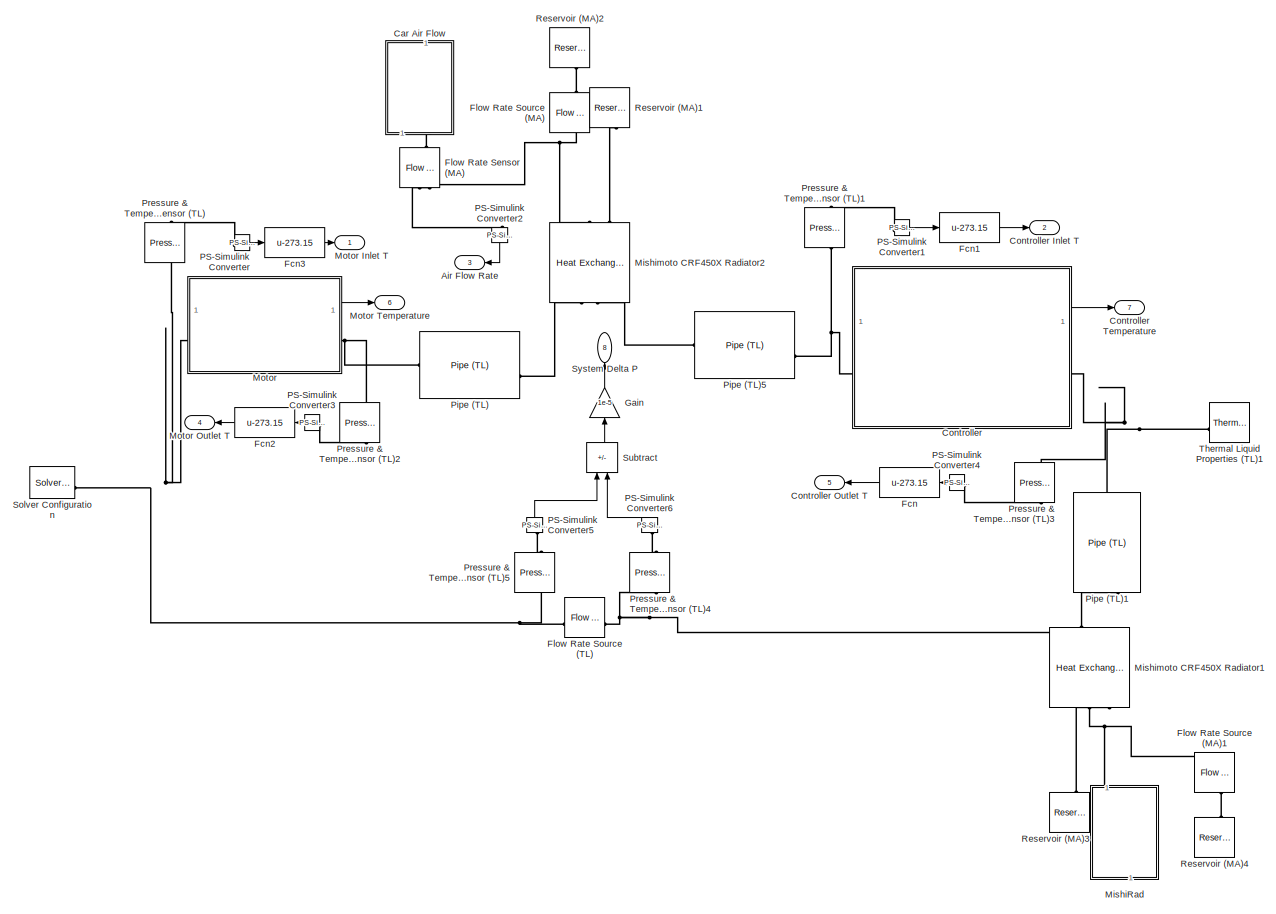
[diagram: root canvas - part 1/1, most of the canvas]
MODEL slx_9f6bfcc296d9
KIND model
CONFIG AbsTol = auto
CONFIG EnableMultiTasking = off
CONFIG FixedStep = auto
CONFIG MaxStep = auto
CONFIG MinStep = auto
CONFIG RelTol = 1e-3
CONFIG SampleTimeConstraint = Unconstrained
CONFIG SolverName = VariableStepAuto
CONFIG StartTime = 0.0
CONFIG StopTime = 2000
BLOCK [Outport] Air Flow Rate
  Port = 3
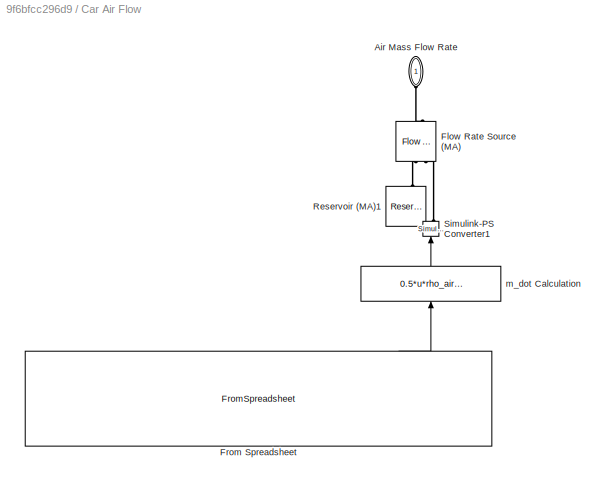
BLOCK [SubSystem] Car Air Flow
  NameLocation = top
BLOCK [PMIOPort] Car Air Flow/Air Mass Flow Rate
  NameLocation = left
  Side = Left
BLOCK [Reference] Car Air Flow/Flow Rate Source (MA)  REF=fl_lib/Moist Air/Sources/Flow Rate Source
(MA)
  NameLocation = right
  SourceBlock = fl_lib/Moist Air/Sources/Flow Rate Source\n(MA)
  SourceType = Flow Rate Source\n(MA)
BLOCK [FromSpreadsheet] Car Air Flow/From Spreadsheet
  FileName = <userpath>\School\UCalgary Racing\2024-25\Projects\UCR02-CoolingSim\data\shortened_velocity.csv
  NameLocation = right
  SheetName = shortened_velocity
BLOCK [Reference] Car Air Flow/Reservoir (MA)1  REF=fl_lib/Moist Air/Elements/Reservoir (MA)
  NameLocation = right
  SourceBlock = fl_lib/Moist Air/Elements/Reservoir (MA)
  SourceType = Reservoir (MA)
BLOCK [Reference] Car Air Flow/Simulink-PS Converter1  REF=nesl_utility/Simulink-PS
Converter
  NameLocation = right
  SourceBlock = nesl_utility/Simulink-PS\nConverter
  SourceType = Simulink-PS\nConverter
BLOCK [Fcn] Car Air Flow/m_dot Calculation
  Expr = 0.5*u*rho_air*current_rad_area
  NameLocation = right
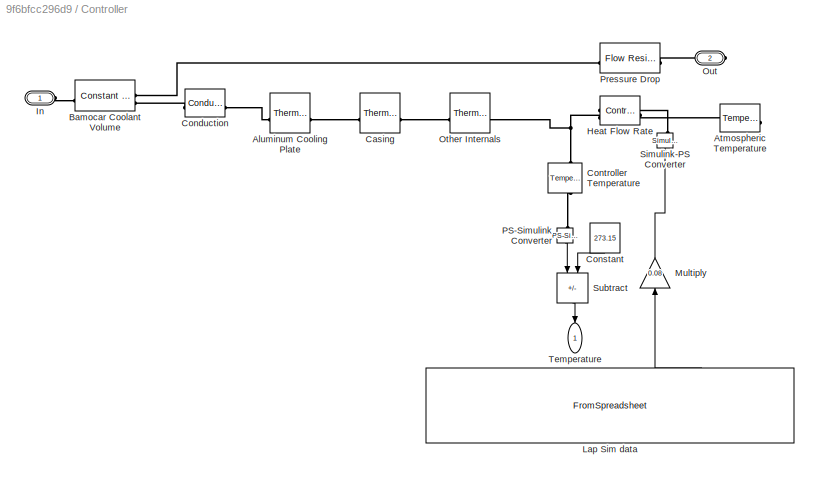
BLOCK [SubSystem] Controller
BLOCK [Outport] Controller Inlet T
  Port = 2
BLOCK [Outport] Controller Outlet T
  NameLocation = top
  Port = 5
BLOCK [Outport] Controller Temperature
  Port = 7
BLOCK [Reference] Controller/Aluminum Cooling Plate  REF=fl_lib/Thermal/Thermal Elements/Thermal Mass
  SourceBlock = fl_lib/Thermal/Thermal Elements/Thermal Mass
  SourceType = Thermal Mass
BLOCK [Reference] Controller/Atmospheric Temperature  REF=fl_lib/Thermal/Thermal Sources/Temperature Source
  NameLocation = top
  SourceBlock = fl_lib/Thermal/Thermal Sources/Temperature Source
  SourceType = Temperature Source
BLOCK [Reference] Controller/Bamocar Coolant Volume  REF=fl_lib/Thermal Liquid/Elements/Constant Volume
Chamber (TL)
  SourceBlock = fl_lib/Thermal Liquid/Elements/Constant Volume\nChamber (TL)
  SourceType = Constant Volume\nChamber (TL)
BLOCK [Reference] Controller/Casing  REF=fl_lib/Thermal/Thermal Elements/Thermal Mass
  SourceBlock = fl_lib/Thermal/Thermal Elements/Thermal Mass
  SourceType = Thermal Mass
BLOCK [Reference] Controller/Conduction  REF=fl_lib/Thermal/Thermal Elements/Conductive Heat
Transfer
  SourceBlock = fl_lib/Thermal/Thermal Elements/Conductive Heat\nTransfer
  SourceType = Conductive Heat\nTransfer
BLOCK [Constant] Controller/Constant
  NameLocation = left
  Value = 273.15
BLOCK [Reference] Controller/Controller Temperature  REF=fl_lib/Thermal/Thermal Sensors/Temperature Sensor
  NameLocation = left
  SourceBlock = fl_lib/Thermal/Thermal Sensors/Temperature Sensor
  SourceType = Temperature Sensor
BLOCK [Reference] Controller/Heat Flow Rate  REF=fl_lib/Thermal/Thermal Sources/Controlled Heat Flow
Rate Source
  NameLocation = top
  SourceBlock = fl_lib/Thermal/Thermal Sources/Controlled Heat Flow\nRate Source
  SourceType = Controlled Heat Flow\nRate Source
BLOCK [PMIOPort] Controller/In
  Side = Left
BLOCK [FromSpreadsheet] Controller/Lap Sim data
  ExtrapolationAfterLastDataPoint = Hold last value
  FileName = <userpath>\School\UCalgary Racing\2024-25\Projects\UCR02-CoolingSim\data\LapTime_Power_new__10.xlsx
  NameLocation = right
  SampleTime = 0.1
  SheetName = LapTime_Power_new__10
BLOCK [Gain] Controller/Multiply
  Gain = 0.08
  NameLocation = right
BLOCK [Reference] Controller/Other Internals  REF=fl_lib/Thermal/Thermal Elements/Thermal Mass
  SourceBlock = fl_lib/Thermal/Thermal Elements/Thermal Mass
  SourceType = Thermal Mass
BLOCK [PMIOPort] Controller/Out
  Port = 2
  Side = Right
BLOCK [Reference] Controller/PS-Simulink Converter  REF=nesl_utility/PS-Simulink
Converter
  NameLocation = left
  SourceBlock = nesl_utility/PS-Simulink\nConverter
  SourceType = PS-Simulink\nConverter
BLOCK [Reference] Controller/Pressure Drop  REF=fl_lib/Thermal Liquid/Elements/Flow Resistance (TL)
  NameLocation = top
  SourceBlock = fl_lib/Thermal Liquid/Elements/Flow Resistance (TL)
  SourceType = Flow Resistance (TL)
BLOCK [Reference] Controller/Simulink-PS Converter  REF=nesl_utility/Simulink-PS
Converter
  NameLocation = right
  SourceBlock = nesl_utility/Simulink-PS\nConverter
  SourceType = Simulink-PS\nConverter
BLOCK [Sum] Controller/Subtract
  IconShape = rectangular
  Inputs = +-
  NameLocation = left
BLOCK [Outport] Controller/Temperature
  NameLocation = left
BLOCK [Fcn] Fcn
  Expr = u-273.15
BLOCK [Fcn] Fcn1
  Expr = u-273.15
BLOCK [Fcn] Fcn2
  Expr = u-273.15
BLOCK [Fcn] Fcn3
  Expr = u-273.15
BLOCK [Reference] Flow Rate Sensor (MA)  REF=fl_lib/Moist Air/Sensors/Flow Rate Sensor
(MA)
  NameLocation = left
  SourceBlock = fl_lib/Moist Air/Sensors/Flow Rate Sensor\n(MA)
  SourceType = Flow Rate Sensor\n(MA)
BLOCK [Reference] Flow Rate Source (MA)  REF=fl_lib/Moist Air/Sources/Flow Rate Source
(MA)
  NameLocation = left
  SourceBlock = fl_lib/Moist Air/Sources/Flow Rate Source\n(MA)
  SourceType = Flow Rate Source\n(MA)
BLOCK [Reference] Flow Rate Source (MA)1  REF=fl_lib/Moist Air/Sources/Flow Rate Source
(MA)
  NameLocation = right
  SourceBlock = fl_lib/Moist Air/Sources/Flow Rate Source\n(MA)
  SourceType = Flow Rate Source\n(MA)
BLOCK [Reference] Flow Rate Source (TL)  REF=fl_lib/Thermal Liquid/Sources/Flow Rate Source
(TL)
  SourceBlock = fl_lib/Thermal Liquid/Sources/Flow Rate Source\n(TL)
  SourceType = Flow Rate Source\n(TL)
BLOCK [Gain] Gain
  Gain = 1e-5
  NameLocation = right
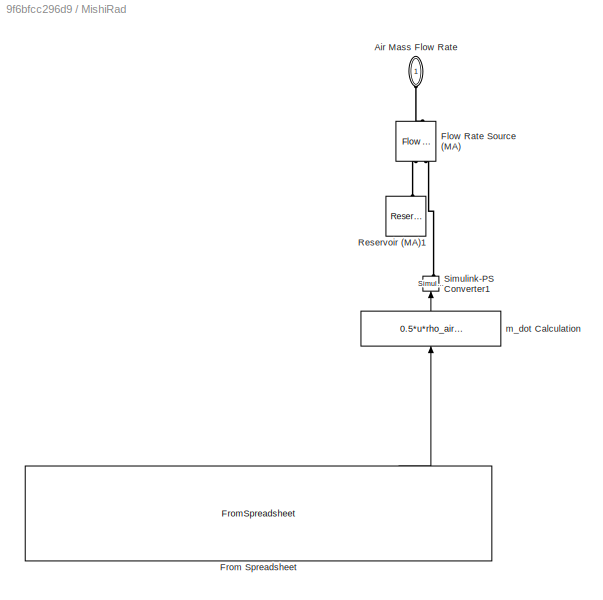
BLOCK [SubSystem] MishiRad
BLOCK [PMIOPort] MishiRad/Air Mass Flow Rate
  NameLocation = left
  Side = Left
BLOCK [Reference] MishiRad/Flow Rate Source (MA)  REF=fl_lib/Moist Air/Sources/Flow Rate Source
(MA)
  NameLocation = right
  SourceBlock = fl_lib/Moist Air/Sources/Flow Rate Source\n(MA)
  SourceType = Flow Rate Source\n(MA)
BLOCK [FromSpreadsheet] MishiRad/From Spreadsheet
  FileName = <userpath>\School\UCalgary Racing\2024-25\Projects\UCR02-CoolingSim\data\shortened_velocity.csv
  NameLocation = right
  SheetName = shortened_velocity
BLOCK [Reference] MishiRad/Reservoir (MA)1  REF=fl_lib/Moist Air/Elements/Reservoir (MA)
  NameLocation = right
  SourceBlock = fl_lib/Moist Air/Elements/Reservoir (MA)
  SourceType = Reservoir (MA)
BLOCK [Reference] MishiRad/Simulink-PS Converter1  REF=nesl_utility/Simulink-PS
Converter
  NameLocation = right
  SourceBlock = nesl_utility/Simulink-PS\nConverter
  SourceType = Simulink-PS\nConverter
BLOCK [Fcn] MishiRad/m_dot Calculation
  Expr = 0.5*u*rho_air*current_rad_area
  NameLocation = right
BLOCK [Reference] Mishimoto CRF450X Radiator1  REF=SimscapeFluids_lib/Heat Exchangers/Thermal Liquid -
Moist Air/Heat Exchanger
(TL-MA)
  NameLocation = left
  SourceBlock = SimscapeFluids_lib/Heat Exchangers/Thermal Liquid -\nMoist Air/Heat Exchanger\n(TL-MA)
  SourceType = Heat Exchanger\n(TL-MA)
BLOCK [Reference] Mishimoto CRF450X Radiator2  REF=SimscapeFluids_lib/Heat Exchangers/Thermal Liquid -
Moist Air/Heat Exchanger
(TL-MA)
  NameLocation = right
  SourceBlock = SimscapeFluids_lib/Heat Exchangers/Thermal Liquid -\nMoist Air/Heat Exchanger\n(TL-MA)
  SourceType = Heat Exchanger\n(TL-MA)
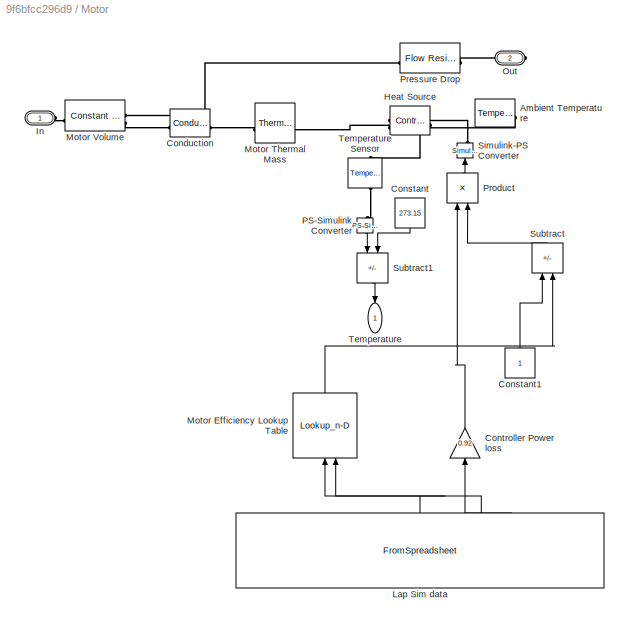
BLOCK [SubSystem] Motor
BLOCK [Outport] Motor Inlet T
BLOCK [Outport] Motor Outlet T
  NameLocation = top
  Port = 4
BLOCK [Outport] Motor Temperature
  Port = 6
BLOCK [Reference] Motor/Ambient Temperature  REF=fl_lib/Thermal/Thermal Sources/Temperature Source
  NameLocation = top
  SourceBlock = fl_lib/Thermal/Thermal Sources/Temperature Source
  SourceType = Temperature Source
BLOCK [Reference] Motor/Conduction  REF=fl_lib/Thermal/Thermal Elements/Conductive Heat
Transfer
  SourceBlock = fl_lib/Thermal/Thermal Elements/Conductive Heat\nTransfer
  SourceType = Conductive Heat\nTransfer
BLOCK [Constant] Motor/Constant
  NameLocation = left
  Value = 273.15
BLOCK [Constant] Motor/Constant1
  NameLocation = right
BLOCK [Gain] Motor/Controller Power loss
  Gain = 0.92
  NameLocation = right
BLOCK [Reference] Motor/Heat Source  REF=fl_lib/Thermal/Thermal Sources/Controlled Heat Flow
Rate Source
  NameLocation = top
  SourceBlock = fl_lib/Thermal/Thermal Sources/Controlled Heat Flow\nRate Source
  SourceType = Controlled Heat Flow\nRate Source
BLOCK [PMIOPort] Motor/In
  Side = Left
BLOCK [FromSpreadsheet] Motor/Lap Sim data
  ExtrapolationAfterLastDataPoint = Ground value
  FileName = <userpath>\School\UCalgary Racing\2024-25\Projects\UCR02-CoolingSim\data\LapTime_Power_new__10.xlsx
  NameLocation = right
  SampleTime = 0.1
  SheetName = LapTime_Power_new__10
BLOCK [Lookup_n-D] Motor/Motor Efficiency Lookup Table
  BreakpointsForDimension1 = speed
  BreakpointsForDimension2 = torque
  InputPortMap = u0,u1
  InternalRulePriority = Speed
  NameLocation = right
  RndMeth = Simplest
  Table = efficiencyGrid
BLOCK [Reference] Motor/Motor Thermal Mass  REF=fl_lib/Thermal/Thermal Elements/Thermal Mass
  SourceBlock = fl_lib/Thermal/Thermal Elements/Thermal Mass
  SourceType = Thermal Mass
BLOCK [Reference] Motor/Motor Volume  REF=fl_lib/Thermal Liquid/Elements/Constant Volume
Chamber (TL)
  SourceBlock = fl_lib/Thermal Liquid/Elements/Constant Volume\nChamber (TL)
  SourceType = Constant Volume\nChamber (TL)
BLOCK [PMIOPort] Motor/Out
  Port = 2
  Side = Right
BLOCK [Reference] Motor/PS-Simulink Converter  REF=nesl_utility/PS-Simulink
Converter
  NameLocation = left
  SourceBlock = nesl_utility/PS-Simulink\nConverter
  SourceType = PS-Simulink\nConverter
BLOCK [Reference] Motor/Pressure Drop  REF=fl_lib/Thermal Liquid/Elements/Flow Resistance (TL)
  NameLocation = top
  SourceBlock = fl_lib/Thermal Liquid/Elements/Flow Resistance (TL)
  SourceType = Flow Resistance (TL)
BLOCK [Product] Motor/Product
  NameLocation = right
BLOCK [Reference] Motor/Simulink-PS Converter  REF=nesl_utility/Simulink-PS
Converter
  NameLocation = right
  SourceBlock = nesl_utility/Simulink-PS\nConverter
  SourceType = Simulink-PS\nConverter
BLOCK [Sum] Motor/Subtract
  IconShape = rectangular
  Inputs = +-
  NameLocation = right
BLOCK [Sum] Motor/Subtract1
  IconShape = rectangular
  Inputs = +-
  NameLocation = left
BLOCK [Outport] Motor/Temperature
  NameLocation = left
BLOCK [Reference] Motor/Temperature Sensor  REF=fl_lib/Thermal/Thermal Sensors/Temperature Sensor
  NameLocation = left
  SourceBlock = fl_lib/Thermal/Thermal Sensors/Temperature Sensor
  SourceType = Temperature Sensor
BLOCK [Reference] PS-Simulink Converter  REF=nesl_utility/PS-Simulink
Converter
  SourceBlock = nesl_utility/PS-Simulink\nConverter
  SourceType = PS-Simulink\nConverter
BLOCK [Reference] PS-Simulink Converter1  REF=nesl_utility/PS-Simulink
Converter
  SourceBlock = nesl_utility/PS-Simulink\nConverter
  SourceType = PS-Simulink\nConverter
BLOCK [Reference] PS-Simulink Converter2  REF=nesl_utility/PS-Simulink
Converter
  NameLocation = left
  SourceBlock = nesl_utility/PS-Simulink\nConverter
  SourceType = PS-Simulink\nConverter
BLOCK [Reference] PS-Simulink Converter3  REF=nesl_utility/PS-Simulink
Converter
  NameLocation = top
  SourceBlock = nesl_utility/PS-Simulink\nConverter
  SourceType = PS-Simulink\nConverter
BLOCK [Reference] PS-Simulink Converter4  REF=nesl_utility/PS-Simulink
Converter
  NameLocation = top
  SourceBlock = nesl_utility/PS-Simulink\nConverter
  SourceType = PS-Simulink\nConverter
BLOCK [Reference] PS-Simulink Converter5  REF=nesl_utility/PS-Simulink
Converter
  NameLocation = right
  SourceBlock = nesl_utility/PS-Simulink\nConverter
  SourceType = PS-Simulink\nConverter
BLOCK [Reference] PS-Simulink Converter6  REF=nesl_utility/PS-Simulink
Converter
  NameLocation = right
  SourceBlock = nesl_utility/PS-Simulink\nConverter
  SourceType = PS-Simulink\nConverter
BLOCK [Reference] Pipe (TL)  REF=fl_lib/Thermal Liquid/Elements/Pipe (TL)
  SourceBlock = fl_lib/Thermal Liquid/Elements/Pipe (TL)
  SourceType = Pipe (TL)
BLOCK [Reference] Pipe (TL)1  REF=fl_lib/Thermal Liquid/Elements/Pipe (TL)
  NameLocation = left
  SourceBlock = fl_lib/Thermal Liquid/Elements/Pipe (TL)
  SourceType = Pipe (TL)
BLOCK [Reference] Pipe (TL)5  REF=fl_lib/Thermal Liquid/Elements/Pipe (TL)
  SourceBlock = fl_lib/Thermal Liquid/Elements/Pipe (TL)
  SourceType = Pipe (TL)
BLOCK [Reference] Pressure & Temperature Sensor (TL)  REF=fl_lib/Thermal Liquid/Sensors/Pressure &
Temperature Sensor
(TL)
  NameLocation = left
  SourceBlock = fl_lib/Thermal Liquid/Sensors/Pressure &\nTemperature Sensor\n(TL)
  SourceType = Pressure &\nTemperature Sensor\n(TL)
BLOCK [Reference] Pressure & Temperature Sensor (TL)1  REF=fl_lib/Thermal Liquid/Sensors/Pressure &
Temperature Sensor
(TL)
  NameLocation = left
  SourceBlock = fl_lib/Thermal Liquid/Sensors/Pressure &\nTemperature Sensor\n(TL)
  SourceType = Pressure &\nTemperature Sensor\n(TL)
BLOCK [Reference] Pressure & Temperature Sensor (TL)2  REF=fl_lib/Thermal Liquid/Sensors/Pressure &
Temperature Sensor
(TL)
  NameLocation = right
  SourceBlock = fl_lib/Thermal Liquid/Sensors/Pressure &\nTemperature Sensor\n(TL)
  SourceType = Pressure &\nTemperature Sensor\n(TL)
BLOCK [Reference] Pressure & Temperature Sensor (TL)3  REF=fl_lib/Thermal Liquid/Sensors/Pressure &
Temperature Sensor
(TL)
  NameLocation = right
  SourceBlock = fl_lib/Thermal Liquid/Sensors/Pressure &\nTemperature Sensor\n(TL)
  SourceType = Pressure &\nTemperature Sensor\n(TL)
BLOCK [Reference] Pressure & Temperature Sensor (TL)4  REF=fl_lib/Thermal Liquid/Sensors/Pressure &
Temperature Sensor
(TL)
  NameLocation = right
  SourceBlock = fl_lib/Thermal Liquid/Sensors/Pressure &\nTemperature Sensor\n(TL)
  SourceType = Pressure &\nTemperature Sensor\n(TL)
BLOCK [Reference] Pressure & Temperature Sensor (TL)5  REF=fl_lib/Thermal Liquid/Sensors/Pressure &
Temperature Sensor
(TL)
  NameLocation = right
  SourceBlock = fl_lib/Thermal Liquid/Sensors/Pressure &\nTemperature Sensor\n(TL)
  SourceType = Pressure &\nTemperature Sensor\n(TL)
BLOCK [Reference] Reservoir (MA)1  REF=fl_lib/Moist Air/Elements/Reservoir (MA)
  NameLocation = left
  SourceBlock = fl_lib/Moist Air/Elements/Reservoir (MA)
  SourceType = Reservoir (MA)
BLOCK [Reference] Reservoir (MA)2  REF=fl_lib/Moist Air/Elements/Reservoir (MA)
  NameLocation = left
  SourceBlock = fl_lib/Moist Air/Elements/Reservoir (MA)
  SourceType = Reservoir (MA)
BLOCK [Reference] Reservoir (MA)3  REF=fl_lib/Moist Air/Elements/Reservoir (MA)
  NameLocation = right
  SourceBlock = fl_lib/Moist Air/Elements/Reservoir (MA)
  SourceType = Reservoir (MA)
BLOCK [Reference] Reservoir (MA)4  REF=fl_lib/Moist Air/Elements/Reservoir (MA)
  NameLocation = right
  SourceBlock = fl_lib/Moist Air/Elements/Reservoir (MA)
  SourceType = Reservoir (MA)
BLOCK [Reference] Solver Configuration  REF=nesl_utility/Solver
Configuration
  SourceBlock = nesl_utility/Solver\nConfiguration
  SourceType = Solver\nConfiguration
BLOCK [Sum] Subtract
  IconShape = rectangular
  Inputs = +-
  NameLocation = right
BLOCK [Outport] System Delta P
  NameLocation = right
  Port = 8
BLOCK [Reference] Thermal Liquid Properties (TL)1  REF=SimscapeFluids_lib/Thermal Liquid/Utilities/Thermal Liquid
Properties (TL)
  SourceBlock = SimscapeFluids_lib/Thermal Liquid/Utilities/Thermal Liquid\nProperties (TL)
  SourceType = Thermal Liquid\nProperties (TL)
LINE Car Air Flow/From Spreadsheet:4 -> Car Air Flow/m_dot Calculation:1
LINE Car Air Flow/m_dot Calculation:1 -> Car Air Flow/Simulink-PS Converter1:1
LINE Controller/Constant:1 -> Controller/Subtract:2
LINE Controller/Lap Sim data:3 -> Controller/Multiply:1
LINE Controller/Multiply:1 -> Controller/Simulink-PS Converter:1
LINE Controller/PS-Simulink Converter:1 -> Controller/Subtract:1
LINE Controller/Subtract:1 -> Controller/Temperature:1
LINE Controller:1 -> Controller Temperature:1
LINE Fcn1:1 -> Controller Inlet T:1
LINE Fcn2:1 -> Motor Outlet T:1
LINE Fcn3:1 -> Motor Inlet T:1
LINE Fcn:1 -> Controller Outlet T:1
LINE Gain:1 -> System Delta P:1
LINE MishiRad/From Spreadsheet:4 -> MishiRad/m_dot Calculation:1
LINE MishiRad/m_dot Calculation:1 -> MishiRad/Simulink-PS Converter1:1
LINE Motor/Constant1:1 -> Motor/Subtract:1
LINE Motor/Constant:1 -> Motor/Subtract1:2
LINE Motor/Controller Power loss:1 -> Motor/Product:1
LINE Motor/Lap Sim data:1 -> Motor/Motor Efficiency Lookup Table:1
LINE Motor/Lap Sim data:2 -> Motor/Motor Efficiency Lookup Table:2
LINE Motor/Lap Sim data:3 -> Motor/Controller Power loss:1
LINE Motor/Motor Efficiency Lookup Table:1 -> Motor/Subtract:2
LINE Motor/PS-Simulink Converter:1 -> Motor/Subtract1:1
LINE Motor/Product:1 -> Motor/Simulink-PS Converter:1
LINE Motor/Subtract1:1 -> Motor/Temperature:1
LINE Motor/Subtract:1 -> Motor/Product:2
LINE Motor:1 -> Motor Temperature:1
LINE PS-Simulink Converter1:1 -> Fcn1:1
LINE PS-Simulink Converter2:1 -> Air Flow Rate:1
LINE PS-Simulink Converter3:1 -> Fcn2:1
LINE PS-Simulink Converter4:1 -> Fcn:1
LINE PS-Simulink Converter5:1 -> Subtract:1
LINE PS-Simulink Converter6:1 -> Subtract:2
LINE PS-Simulink Converter:1 -> Fcn3:1
LINE Subtract:1 -> Gain:1
PLINE Car Air Flow/Air Mass Flow Rate:RConn1 -- Car Air Flow/Flow Rate Source (MA):RConn1
PLINE Car Air Flow/Flow Rate Source (MA):LConn1 -- Car Air Flow/Reservoir (MA)1:LConn1
PLINE Car Air Flow/Flow Rate Source (MA):LConn2 -- Car Air Flow/Simulink-PS Converter1:RConn1
PLINE Car Air Flow:LConn1 -- Flow Rate Sensor (MA):LConn1
PLINE Controller/Aluminum Cooling Plate:LConn1 -- Controller/Casing:RConn1
PLINE Controller/Aluminum Cooling Plate:RConn1 -- Controller/Conduction:LConn1
PLINE Controller/Atmospheric Temperature:LConn1 -- Controller/Heat Flow Rate:RConn2
PLINE Controller/Bamocar Coolant Volume:LConn1 -- Controller/Pressure Drop:LConn1
PLINE Controller/Bamocar Coolant Volume:LConn2 -- Controller/Conduction:RConn1
PLINE Controller/Bamocar Coolant Volume:RConn1 -- Controller/In:RConn1
PLINE Controller/Casing:LConn1 -- Controller/Other Internals:RConn1
PNET net1: Controller/Controller Temperature:LConn1 -- Controller/Heat Flow Rate:LConn1 -- Controller/Other Internals:LConn1
PLINE Controller/Controller Temperature:RConn1 -- Controller/PS-Simulink Converter:LConn1
PLINE Controller/Heat Flow Rate:RConn1 -- Controller/Simulink-PS Converter:RConn1
PLINE Controller/Out:RConn1 -- Controller/Pressure Drop:RConn1
PNET net2: Controller:LConn1 -- Pipe (TL)5:RConn1 -- Pressure & Temperature Sensor (TL)1:LConn1
PNET net3: Controller:RConn1 -- Pipe (TL)1:LConn1 -- Pressure & Temperature Sensor (TL)3:LConn1 -- Thermal Liquid Properties (TL)1:RConn1
PNET net4: Flow Rate Sensor (MA):RConn1 -- Flow Rate Source (MA):RConn1 -- Mishimoto CRF450X Radiator2:RConn1
PLINE Flow Rate Sensor (MA):RConn2 -- PS-Simulink Converter2:LConn1
PLINE Flow Rate Source (MA)1:LConn1 -- Reservoir (MA)4:LConn1
PNET net5: Flow Rate Source (MA)1:RConn1 -- MishiRad:LConn1 -- Mishimoto CRF450X Radiator1:RConn1
PLINE Flow Rate Source (MA):LConn1 -- Reservoir (MA)2:LConn1
PNET net6: Flow Rate Source (TL):LConn1 -- Mishimoto CRF450X Radiator1:LConn2 -- Pressure & Temperature Sensor (TL)4:LConn1
PNET net7: Flow Rate Source (TL):RConn1 -- Motor:LConn1 -- Pressure & Temperature Sensor (TL)5:LConn1 -- Pressure & Temperature Sensor (TL):LConn1 -- Solver Configuration:RConn1
PLINE MishiRad/Air Mass Flow Rate:RConn1 -- MishiRad/Flow Rate Source (MA):RConn1
PLINE MishiRad/Flow Rate Source (MA):LConn1 -- MishiRad/Reservoir (MA)1:LConn1
PLINE MishiRad/Flow Rate Source (MA):LConn2 -- MishiRad/Simulink-PS Converter1:RConn1
PLINE Mishimoto CRF450X Radiator1:LConn1 -- Pipe (TL)1:RConn1
PLINE Mishimoto CRF450X Radiator1:RConn2 -- Reservoir (MA)3:LConn1
PLINE Mishimoto CRF450X Radiator2:LConn1 -- Pipe (TL):RConn1
PLINE Mishimoto CRF450X Radiator2:LConn2 -- Pipe (TL)5:LConn1
PLINE Mishimoto CRF450X Radiator2:RConn2 -- Reservoir (MA)1:LConn1
PLINE Motor/Ambient Temperature:LConn1 -- Motor/Heat Source:RConn2
PLINE Motor/Conduction:LConn1 -- Motor/Motor Thermal Mass:RConn1
PLINE Motor/Conduction:RConn1 -- Motor/Motor Volume:LConn2
PNET net8: Motor/Heat Source:LConn1 -- Motor/Motor Thermal Mass:LConn1 -- Motor/Temperature Sensor:LConn1
PLINE Motor/Heat Source:RConn1 -- Motor/Simulink-PS Converter:RConn1
PLINE Motor/In:RConn1 -- Motor/Motor Volume:RConn1
PLINE Motor/Motor Volume:LConn1 -- Motor/Pressure Drop:LConn1
PLINE Motor/Out:RConn1 -- Motor/Pressure Drop:RConn1
PLINE Motor/PS-Simulink Converter:LConn1 -- Motor/Temperature Sensor:RConn1
PNET net9: Motor:RConn1 -- Pipe (TL):LConn1 -- Pressure & Temperature Sensor (TL)2:LConn1
PLINE PS-Simulink Converter1:LConn1 -- Pressure & Temperature Sensor (TL)1:RConn1
PLINE PS-Simulink Converter3:LConn1 -- Pressure & Temperature Sensor (TL)2:RConn1
PLINE PS-Simulink Converter4:LConn1 -- Pressure & Temperature Sensor (TL)3:RConn1
PLINE PS-Simulink Converter5:LConn1 -- Pressure & Temperature Sensor (TL)5:RConn1
PLINE PS-Simulink Converter6:LConn1 -- Pressure & Temperature Sensor (TL)4:RConn1
PLINE PS-Simulink Converter:LConn1 -- Pressure & Temperature Sensor (TL):RConn1
note: PNET lines group multi-terminal physical nets as a canonical sorted terminal list (undirected conserving connections); 2-terminal nets keep the pairwise PLINE form
